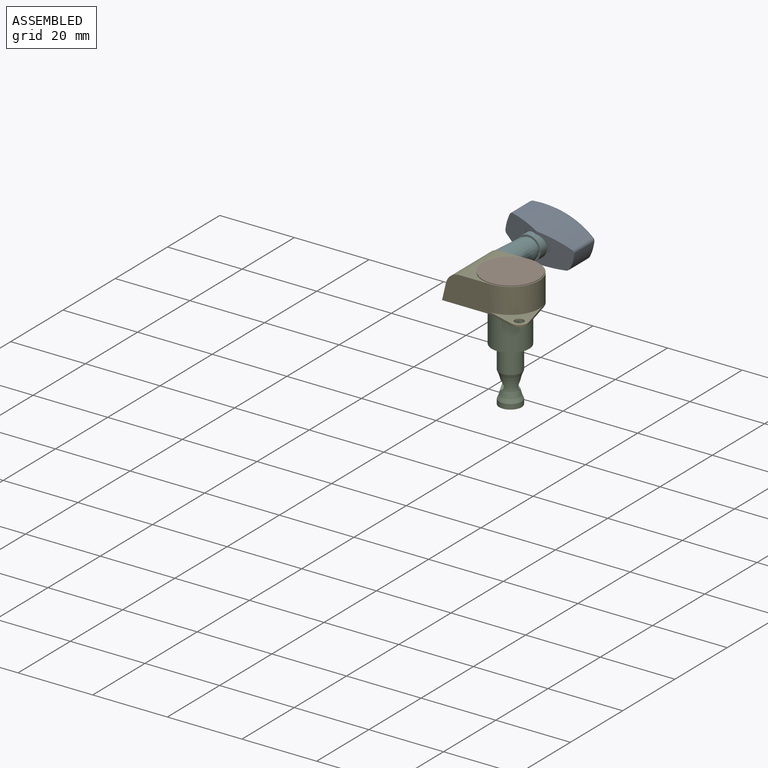
[diagram: assembled view]
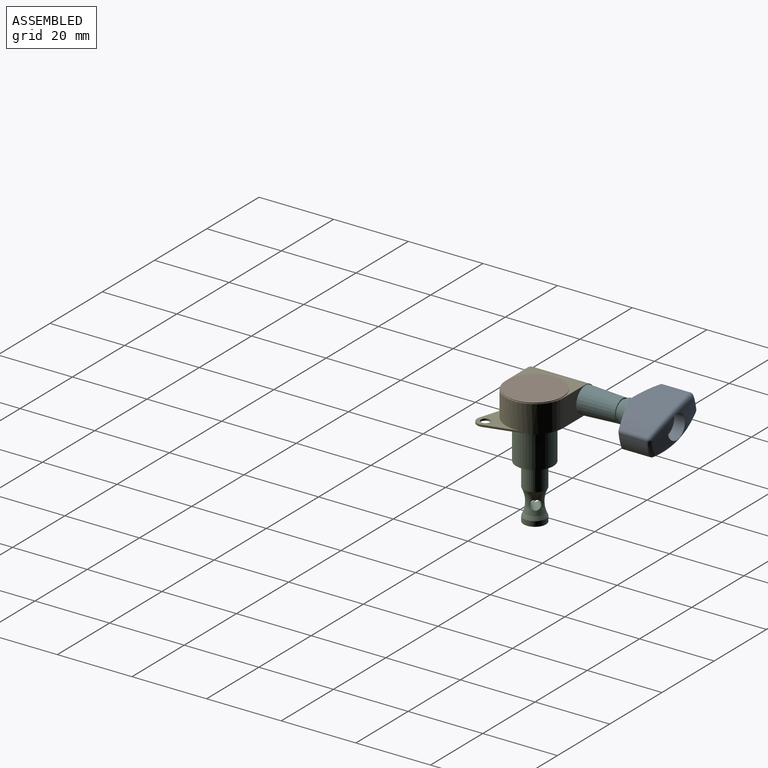
[diagram: assembled view, second angle]
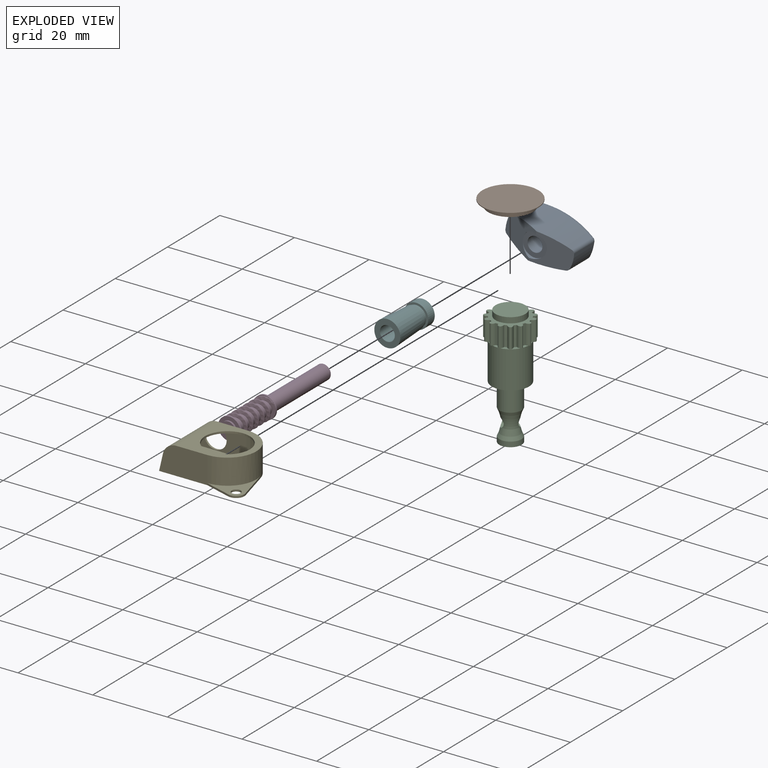
[diagram: exploded view]
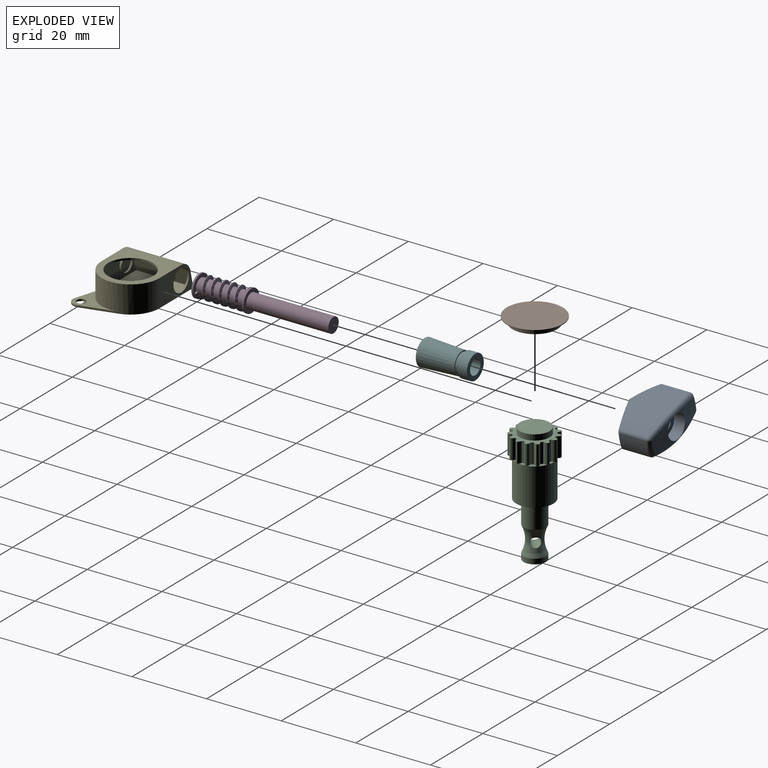
[diagram: exploded view, second angle]
ASSEMBLY  parts=6 mates=5
PART A: 26 faces, bbox 18.7x8.3x12.3 mm
  f0: cylinder r=45mm len=7.07mm, axis (0,1,0), area 25.7mm2, adj f5,f15,f20,f25
  f1: cylinder r=10mm len=7.44mm, axis (0,0,-1), area 31.2mm2, adj f8,f14,f19,f20
  f2: cylinder r=30mm len=16.56mm, axis (0,0,-1), area 150.3mm2, adj f7,f8,f19,f22,f25
  f3: cylinder r=10mm len=7.44mm, axis (0,0,-1), area 31.2mm2, adj f7,f16,f21,f22
  f4: cylinder r=30mm len=16.56mm, axis (0,0,-1), area 150.3mm2, adj f7,f8,f14,f15,f16
  f5: cylinder r=3.25mm len=6.5mm, axis (0,0,1), area 60.5mm2, adj f0,f12,f13,f15,f25
  f6: cylinder r=2mm len=8mm, axis (0,0,-1), area 100.5mm2, adj f9,f12
  f7: plane 9.49x8.29mm, normal (0.3,0,-0.95), area 49.9mm2, adj f2,f3,f4,f8,f9,f10,f11,f16
  f8: plane 9.49x8.29mm, normal (-0.3,0,-0.95), area 49.9mm2, adj f1,f2,f4,f7,f9,f10,f11,f14
  f9: plane 6.5x6.35mm, normal (0,0,-1), area 20.5mm2, adj f6,f7,f8,f10,f11
  f10: cylinder r=3.25mm len=6.35mm, axis (0,0,-1), area 4.4mm2, adj f7,f8,f9
  f11: cylinder r=3.25mm len=6.35mm, axis (0,0,-1), area 4.4mm2, adj f7,f8,f9
  f12: plane 6.5x6.5mm, normal (0,0,1), area 20.6mm2, adj f5,f6
  f13: cylinder r=45mm len=7.07mm, axis (0,1,0), area 28.3mm2, adj f5,f15,f21,f25
  f14: cylinder r=1mm len=7.66mm, axis (0,0,-1), area 8.2mm2, adj f1,f4,f8,f17
  f15: bspline ~16.65x2.13mm, area 26.2mm2, adj f0,f4,f5,f13,f17,f18
  f16: cylinder r=1mm len=7.66mm, axis (0,0,-1), area 8.2mm2, adj f3,f4,f7,f18
  f17: sphere r=1mm, area 0.6mm2, adj f14,f15,f20
  f18: sphere r=1mm, area 1mm2, adj f15,f16,f21
  f19: cylinder r=1mm len=7.66mm, axis (0,0,-1), area 8.2mm2, adj f1,f2,f8,f23
  f20: bspline ~5.48x1.18mm, area 5.6mm2, adj f0,f1,f17,f23
  f21: bspline ~5.48x1.18mm, area 5.6mm2, adj f3,f13,f18,f24
  f22: cylinder r=1mm len=7.66mm, axis (0,0,-1), area 8.2mm2, adj f2,f3,f7,f24
  f23: sphere r=1mm, area 0.6mm2, adj f19,f20,f25
  f24: sphere r=1mm, area 1mm2, adj f21,f22,f25
  f25: bspline ~16.65x2.13mm, area 26.2mm2, adj f0,f2,f5,f13,f23,f24
PART B: 7 faces, bbox 15x15x1.7 mm
  f0: cylinder r=7.5mm len=15mm, axis (0,0,-1), area 9.4mm2, adj f1,f6
  f1: plane 15x15mm, normal (0,0,1), area 176.7mm2, adj f0
  f2: plane 8x8mm, normal (0,0,-1), area 50.3mm2, adj f3
  f3: cylinder r=4mm len=8mm, axis (0,0,-1), area 37.7mm2, adj f2,f4
  f4: plane 12x12mm, normal (0,0,-1), area 62.8mm2, adj f3,f5
  f5: cylinder r=6mm len=12mm, axis (0,0,-1), area 56.5mm2, adj f4,f6
  f6: plane 15x15mm, normal (0,0,-1), area 63.6mm2, adj f0,f5
PART C: 75 faces, bbox 12x11.9x32.4 mm
  f0: cylinder r=1.4mm len=5.3mm, axis (0,0,-1), area 6.3mm2, adj f1,f59,f65,f72
  f1: cylinder r=5mm len=5.3mm, axis (0,0,-1), area 3.7mm2, adj f0,f2,f65,f72
  f2: cylinder r=1.4mm len=5.3mm, axis (0,0,-1), area 6.3mm2, adj f1,f3,f65,f72
  f3: cylinder r=6mm len=5.3mm, axis (0,0,-1), area 2.5mm2, adj f2,f4,f65,f72
  f4: cylinder r=1.4mm len=5.3mm, axis (0,0,-1), area 6.3mm2, adj f3,f5,f65,f72
  f5: cylinder r=5mm len=5.3mm, axis (0,0,-1), area 3.7mm2, adj f4,f6,f65,f72
  f6: cylinder r=1.4mm len=5.3mm, axis (0,0,-1), area 6.3mm2, adj f5,f7,f65,f72
  f7: cylinder r=6mm len=5.3mm, axis (0,0,-1), area 2.5mm2, adj f6,f8,f65,f72
  f8: cylinder r=1.4mm len=5.3mm, axis (0,0,-1), area 6.3mm2, adj f7,f9,f65,f72
  f9: cylinder r=5mm len=5.3mm, axis (0,0,-1), area 3.7mm2, adj f8,f10,f65,f72
  f10: cylinder r=1.4mm len=5.3mm, axis (0,0,-1), area 6.3mm2, adj f9,f11,f65,f72
  f11: cylinder r=6mm len=5.3mm, axis (0,0,-1), area 2.5mm2, adj f10,f12,f65,f72
  f12: cylinder r=1.4mm len=5.3mm, axis (0,0,-1), area 6.3mm2, adj f11,f13,f65,f72
  f13: cylinder r=5mm len=5.3mm, axis (0,0,-1), area 3.7mm2, adj f12,f14,f65,f72
  f14: cylinder r=1.4mm len=5.3mm, axis (0,0,-1), area 6.3mm2, adj f13,f15,f65,f72
  f15: cylinder r=6mm len=5.3mm, axis (0,0,-1), area 2.5mm2, adj f14,f16,f65,f72
  f16: cylinder r=1.4mm len=5.3mm, axis (0,0,-1), area 6.3mm2, adj f15,f17,f65,f72
  f17: cylinder r=5mm len=5.3mm, axis (0,0,-1), area 3.7mm2, adj f16,f18,f65,f72
  f18: cylinder r=1.4mm len=5.3mm, axis (0,0,-1), area 6.3mm2, adj f17,f19,f65,f72
  f19: cylinder r=6mm len=5.3mm, axis (0,0,-1), area 2.5mm2, adj f18,f20,f65,f72
  f20: cylinder r=1.4mm len=5.3mm, axis (0,0,-1), area 6.3mm2, adj f19,f21,f65,f72
  f21: cylinder r=5mm len=5.3mm, axis (0,0,-1), area 3.7mm2, adj f20,f22,f65,f72
  f22: cylinder r=1.4mm len=5.3mm, axis (0,0,-1), area 6.3mm2, adj f21,f23,f65,f72
  f23: cylinder r=6mm len=5.3mm, axis (0,0,-1), area 2.5mm2, adj f22,f24,f65,f72
  f24: cylinder r=1.4mm len=5.3mm, axis (0,0,-1), area 6.3mm2, adj f23,f25,f65,f72
  f25: cylinder r=5mm len=5.3mm, axis (0,0,-1), area 3.7mm2, adj f24,f26,f65,f72
  f26: cylinder r=1.4mm len=5.3mm, axis (0,0,-1), area 6.3mm2, adj f25,f27,f65,f72
  f27: cylinder r=6mm len=5.3mm, axis (0,0,-1), area 2.5mm2, adj f26,f28,f65,f72
  f28: cylinder r=1.4mm len=5.3mm, axis (0,0,-1), area 6.3mm2, adj f27,f29,f65,f72
  f29: cylinder r=5mm len=5.3mm, axis (0,0,-1), area 3.7mm2, adj f28,f30,f65,f72
  f30: cylinder r=1.4mm len=5.3mm, axis (0,0,-1), area 6.3mm2, adj f29,f31,f65,f72
  f31: cylinder r=6mm len=5.3mm, axis (0,0,-1), area 2.5mm2, adj f30,f32,f65,f72
  f32: cylinder r=1.4mm len=5.3mm, axis (0,0,-1), area 6.3mm2, adj f31,f33,f65,f72
  f33: cylinder r=5mm len=5.3mm, axis (0,0,-1), area 3.7mm2, adj f32,f34,f65,f72
  f34: cylinder r=1.4mm len=5.3mm, axis (0,0,-1), area 6.3mm2, adj f33,f35,f65,f72
  f35: cylinder r=6mm len=5.3mm, axis (0,0,-1), area 2.5mm2, adj f34,f36,f65,f72
  f36: cylinder r=1.4mm len=5.3mm, axis (0,0,-1), area 6.3mm2, adj f35,f37,f65,f72
  f37: cylinder r=5mm len=5.3mm, axis (0,0,-1), area 3.7mm2, adj f36,f38,f65,f72
  f38: cylinder r=1.4mm len=5.3mm, axis (0,0,-1), area 6.3mm2, adj f37,f39,f65,f72
  f39: cylinder r=6mm len=5.3mm, axis (0,0,-1), area 2.5mm2, adj f38,f40,f65,f72
  f40: cylinder r=1.4mm len=5.3mm, axis (0,0,-1), area 6.3mm2, adj f39,f41,f65,f72
  f41: cylinder r=5mm len=5.3mm, axis (0,0,-1), area 3.7mm2, adj f40,f42,f65,f72
  f42: cylinder r=1.4mm len=5.3mm, axis (0,0,-1), area 6.3mm2, adj f41,f43,f65,f72
  f43: cylinder r=6mm len=5.3mm, axis (0,0,-1), area 2.5mm2, adj f42,f44,f65,f72
  f44: cylinder r=1.4mm len=5.3mm, axis (0,0,-1), area 6.3mm2, adj f43,f45,f65,f72
  f45: cylinder r=5mm len=5.3mm, axis (0,0,-1), area 3.7mm2, adj f44,f46,f65,f72
  f46: cylinder r=1.4mm len=5.3mm, axis (0,0,-1), area 6.3mm2, adj f45,f47,f65,f72
  f47: cylinder r=6mm len=5.3mm, axis (0,0,-1), area 2.5mm2, adj f46,f48,f65,f72
  f48: cylinder r=1.4mm len=5.3mm, axis (0,0,-1), area 6.3mm2, adj f47,f49,f65,f72
  f49: cylinder r=5mm len=5.3mm, axis (0,0,-1), area 3.7mm2, adj f48,f50,f65,f72
  f50: cylinder r=1.4mm len=5.3mm, axis (0,0,-1), area 6.3mm2, adj f49,f51,f65,f72
  f51: cylinder r=6mm len=5.3mm, axis (0,0,-1), area 2.5mm2, adj f50,f52,f65,f72
  f52: cylinder r=1.4mm len=5.3mm, axis (0,0,-1), area 6.3mm2, adj f51,f53,f65,f72
  f53: cylinder r=5mm len=5.3mm, axis (0,0,-1), area 3.7mm2, adj f52,f54,f65,f72
  f54: cylinder r=1.4mm len=5.3mm, axis (0,0,-1), area 6.3mm2, adj f53,f55,f65,f72
  f55: cylinder r=6mm len=5.3mm, axis (0,0,-1), area 2.5mm2, adj f54,f56,f65,f72
  f56: cylinder r=1.4mm len=5.3mm, axis (0,0,-1), area 6.3mm2, adj f55,f57,f65,f72
  f57: cylinder r=5mm len=5.3mm, axis (0,0,-1), area 3.7mm2, adj f56,f58,f65,f72
  f58: cylinder r=1.4mm len=5.3mm, axis (0,0,-1), area 6.3mm2, adj f57,f59,f65,f72
  f59: cylinder r=6mm len=5.3mm, axis (0,0,-1), area 2.5mm2, adj f0,f58,f65,f72
  f60: cylinder r=3mm len=6.3mm, axis (0,0,-1), area 118.8mm2, adj f63,f66
  f61: cylinder r=3mm len=6mm, axis (0,0,-1), area 9.4mm2, adj f64,f65
  f62: cylinder r=5mm len=10mm, axis (0,0,-1), area 314.2mm2, adj f63,f64
  f63: plane 10x10mm, normal (0,0,1), area 50.3mm2, adj f60,f62
  f64: plane 10x10mm, normal (0,0,-1), area 50.3mm2, adj f61,f62
  f65: plane 11.97x11.91mm, normal (0,0,1), area 67mm2, adj f0,f1,f2,f3,f4,f5,f6,f7
  f66: torus R=9.63mm, axis (0,0,-1), area 98.3mm2, adj f60,f68,f70,f71
  f67: sphere r=32.1mm, area 28.3mm2, adj f68
  f68: cylinder r=3mm len=6mm, axis (0,0,-1), area 25.6mm2, adj f66,f67
  f69: cylinder r=1.25mm len=4.31mm, axis (0,-1,0), area 29.1mm2, adj f70,f71
  f70: bspline ~2.83x2.67mm, area 1.6mm2, adj f66,f69
  f71: bspline ~2.84x2.67mm, area 1.6mm2, adj f66,f69
  f72: plane 11.97x11.91mm, normal (0,0,-1), area 45mm2, adj f0,f1,f2,f3,f4,f5,f6,f7
  f73: cylinder r=4mm len=8mm, axis (0,0,1), area 37.7mm2, adj f72,f74
  f74: plane 8x8mm, normal (0,0,-1), area 50.3mm2, adj f73
PART D: 22 faces, bbox 7.3x6.6x37.1 mm
  f0: cylinder r=2mm len=4mm, axis (0,0,-1), area 29.9mm2, adj f5,f7,f16,f18,f19
  f1: cylinder r=2mm len=4mm, axis (0,0,-1), area 12.9mm2, adj f2,f13,f16,f18
  f2: cylinder r=2mm len=4mm, axis (0,0,-1), area 20.9mm2, adj f1,f3,f16,f18
  f3: cylinder r=2mm len=4mm, axis (0,0,-1), area 20.9mm2, adj f2,f4,f16,f18
  f4: cylinder r=2mm len=4mm, axis (0,0,-1), area 20.9mm2, adj f3,f5,f16,f18
  f5: cylinder r=2mm len=4mm, axis (0,0,-1), area 20.9mm2, adj f0,f4,f16,f18
  f6: cylinder r=3mm len=6mm, axis (0,0,-1), area 9.4mm2, adj f7,f8
  f7: plane 6x6mm, normal (0,0,1), area 15.7mm2, adj f0,f6
  f8: plane 6x6mm, normal (0,0,-1), area 15.7mm2, adj f6,f10
  f9: plane 4x4mm, normal (0,0,-1), area 12.6mm2, adj f10
  f10: cylinder r=2mm len=4mm, axis (0,0,-1), area 6.3mm2, adj f8,f9
  f11: cylinder r=3mm len=6mm, axis (0,0,-1), area 9.4mm2, adj f12,f13
  f12: plane 6.43x6.43mm, normal (0,0,1), area 15.4mm2, adj f11,f15,f20,f21
  f13: plane 6.58x6.58mm, normal (0,0,-1), area 13mm2, adj f1,f11,f16,f17,f18
  f14: plane 4x4mm, normal (0,0,1), area 12.6mm2, adj f15
  f15: cylinder r=2mm len=22mm, axis (0,0,-1), area 276.4mm2, adj f12,f14,f20,f21
  f16: bspline ~13.18x6.7mm, area 85.4mm2, adj f0,f1,f2,f3,f4,f5,f13,f17
  f17: bspline ~13.2x6.71mm, area 21.3mm2, adj f13,f16,f18,f19
  f18: bspline ~12.82x6.7mm, area 83.1mm2, adj f0,f1,f2,f3,f4,f5,f13,f17
  f19: plane 0.9x0.52mm, normal (-1,0,0), area 0.4mm2, adj f0,f16,f17,f18
  f20: plane 0.71x0.08mm, normal (1,0,0), area 0mm2, adj f12,f15,f21
  f21: bspline ~2.51x1.9mm, area 0.2mm2, adj f12,f15,f20
PART E: 26 faces, bbox 22.9x17.8x7.3 mm
  f0: plane 12.43x6.3mm, normal (0,-1,0), area 43.5mm2, adj f2,f3,f15,f22,f23,f25
  f1: plane 12.43x6.3mm, normal (0,1,0), area 55.9mm2, adj f2,f3,f17,f22,f23,f25
  f2: cylinder r=7.25mm len=14.5mm, axis (0,0,-1), area 143.5mm2, adj f0,f1,f3,f25
  f3: plane 19.68x14.5mm, normal (0,0,1), area 184.2mm2, adj f0,f1,f2,f11,f22
  f4: plane 9.22x2.43mm, normal (0.97,0.26,0), area 4.8mm2, adj f5,f9,f12,f13
  f5: cylinder r=7.75mm len=15.5mm, axis (0,0,-1), area 170.6mm2, adj f4,f6,f7,f12,f13,f14
  f6: plane 12.9x7.3mm, normal (0,1,0), area 58mm2, adj f5,f13,f14,f15,f20,f21
  f7: plane 12.9x7.3mm, normal (0,-1,0), area 86.3mm2, adj f5,f8,f13,f14,f20,f21
  f8: plane 7.17x2.16mm, normal (-0.29,-0.96,0), area 3.7mm2, adj f7,f9,f12,f13
  f9: cylinder r=2.2mm len=2.83mm, axis (0,0,-1), area 2.3mm2, adj f4,f8,f12,f13
  f10: cylinder r=1.2mm len=2.4mm, axis (0,0,-1), area 3.8mm2, adj f12,f13
  f11: cylinder r=5mm len=10mm, axis (0,0,-1), area 15.7mm2, adj f3,f13
  f12: plane 11.98x10mm, normal (0,0,1), area 31.6mm2, adj f4,f5,f8,f9,f10
  f13: plane 22.9x17.75mm, normal (0,0,-1), area 247.3mm2, adj f4,f5,f6,f7,f8,f9,f10,f11
  f14: plane 16.05x15.5mm, normal (0,0,1), area 109.9mm2, adj f5,f6,f7,f21,f24
  f15: cylinder r=3mm len=6mm, axis (0,1,0), area 9.4mm2, adj f0,f6
  f16: cylinder r=2mm len=4mm, axis (0,-1,0), area 6.3mm2, adj f18,f19
  f17: cylinder r=2.25mm len=4.5mm, axis (0,-1,0), area 7.1mm2, adj f1,f18
  f18: plane 4.5x4.5mm, normal (0,1,0), area 3.3mm2, adj f16,f17
  f19: plane 4x4mm, normal (0,1,0), area 12.6mm2, adj f16
  f20: plane 15.5x4.48mm, normal (-0.97,0,0.23), area 71.3mm2, adj f6,f7,f13,f21
  f21: cylinder r=3.65mm len=15.5mm, axis (0,1,0), area 75.9mm2, adj f6,f7,f14,f20
  f22: plane 14.5x3.98mm, normal (0.96,0,-0.26), area 59.8mm2, adj f0,f1,f3,f23
  f23: cylinder r=3.15mm len=14.5mm, axis (0,1,0), area 59.6mm2, adj f0,f1,f22,f25
  f24: cylinder r=6mm len=12mm, axis (0,0,1), area 18.8mm2, adj f14,f25
  f25: plane 15.55x14.5mm, normal (0,0,-1), area 89.8mm2, adj f0,f1,f2,f23,f24
PART F: 8 faces, bbox 7x7x13.5 mm
  f0: cylinder r=2mm len=13.5mm, axis (0,0,1), area 169.6mm2, adj f1,f7
  f1: plane 7x7mm, normal (0,0,-1), area 25.9mm2, adj f0,f2
  f2: cone r=3.5mm half-angle=2.9deg, axis (0,0,-1), area 204.5mm2, adj f1,f3
  f3: plane 6x6mm, normal (0,0,1), area 5.4mm2, adj f2,f4
  f4: cylinder r=2.7mm len=5.4mm, axis (0,0,1), area 17mm2, adj f3,f5
  f5: plane 6.5x6.5mm, normal (0,0,-1), area 10.3mm2, adj f4,f6
  f6: cylinder r=3.25mm len=6.5mm, axis (0,0,1), area 51.1mm2, adj f5,f7
  f7: plane 6.5x6.5mm, normal (0,0,1), area 20.6mm2, adj f0,f6
PLACE A rot(axis=(-0.98,0.14,0.14),91.2deg) t=(-7.39,18.83,6.28)mm
PLACE B t=(0.91,-1.42,8.43)mm
PLACE C rot(axis=(-0.91,0.42,0),180deg) t=(0.91,-1.42,9.93)mm
PLACE D rot(axis=(-0.47,0.63,0.63),129.9deg) t=(-7.39,-8.67,6.28)mm
PLACE E t=(0.91,-1.42,2.63)mm fixed
PLACE F rot(axis=(-0.98,0.14,0.14),91.2deg) t=(-7.39,6.33,6.28)mm
MATE fastened F.f0 <-> A.f5  axis (0,1,0) through (-7.39,19.83,6.28)mm
MATE fastened B.f0 <-> E.f2  axis (0,0,-1) through (0.91,-1.42,9.93)mm
MATE revolute C.f1 <-> B.f0  axis (0,0,1) through (0.91,-1.42,9.93)mm
MATE fastened A.f5 <-> D.f0  axis (0,1,0) through (-7.39,27.83,6.28)mm
MATE revolute D.f0 <-> E.f15  axis (0,-1,0) through (-7.39,-8.67,6.28)mm
